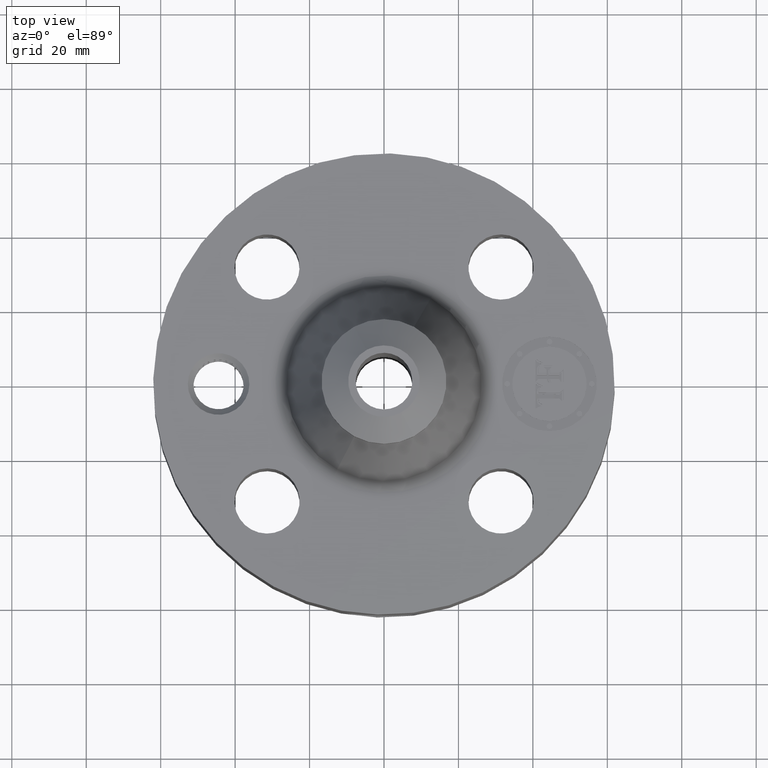
[diagram: clean part render]
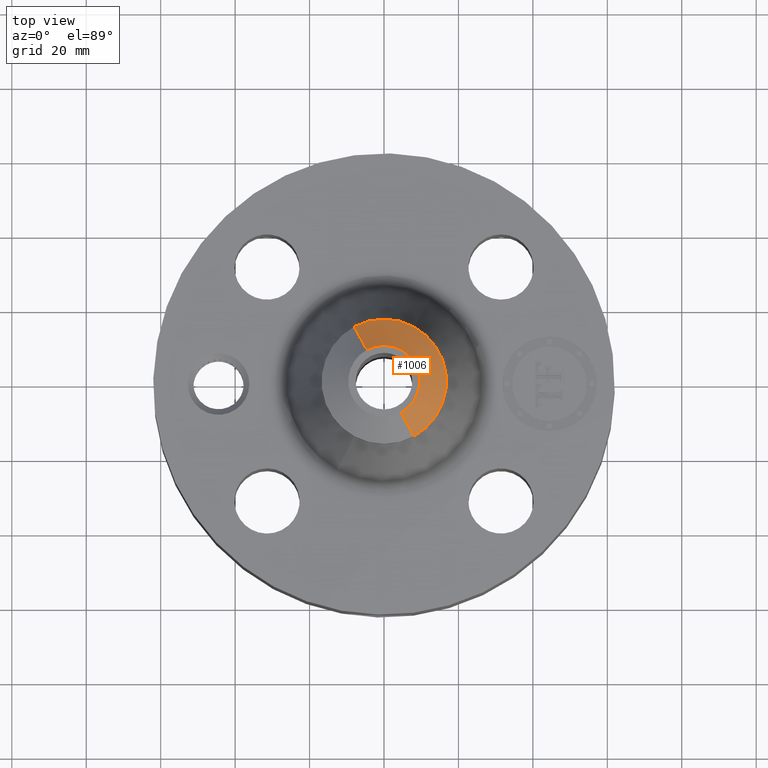
[diagram: same view with one face highlighted and labeled with its STEP entity id]
A machine part, top view. The second image highlights one B-rep face of the part: STEP entity #1006.
In plain terms, the highlighted conical surface has half-angle 52.5 deg.
Its self-contained STEP definition (entity closure, byte-faithful):
#515=AXIS2_PLACEMENT_3D('Circle Axis2P3D',#513,#514,$) ;
#951=AXIS2_PLACEMENT_3D('Cone Axis2P3D',#948,#949,#950) ;
#989=AXIS2_PLACEMENT_3D('Circle Axis2P3D',#987,#988,$) ;
#996=AXIS2_PLACEMENT_3D('Circle Axis2P3D',#994,#995,$) ;
#513=CARTESIAN_POINT('Axis2P3D Location',(0.,0.,3.50000000001)) ;
#517=CARTESIAN_POINT('Vertex',(0.181337991222,-0.331936966412,3.50000000001)) ;
#519=CARTESIAN_POINT('Vertex',(-0.181337991222,0.331936966412,3.50000000001)) ;
#948=CARTESIAN_POINT('Axis2P3D Location',(0.,0.,3.50000000001)) ;
#953=CARTESIAN_POINT('Line Origine',(0.248879423351,-0.455570728631,3.39189903437)) ;
#957=CARTESIAN_POINT('Vertex',(0.31642085548,-0.57920449085,3.28379806872)) ;
#960=CARTESIAN_POINT('Line Origine',(-0.248879423351,0.455570728631,3.39189903437)) ;
#964=CARTESIAN_POINT('Vertex',(-0.31642085548,0.57920449085,3.28379806872)) ;
#987=CARTESIAN_POINT('Axis2P3D Location',(0.,0.,3.28379806872)) ;
#991=CARTESIAN_POINT('Vertex',(0.31642085548,0.57920449085,3.28379806872)) ;
#994=CARTESIAN_POINT('Axis2P3D Location',(0.,0.,3.28379806872)) ;
#514=DIRECTION('Axis2P3D Direction',(0.,0.,-0.0393700787402)) ;
#949=DIRECTION('Axis2P3D Direction',(-0.,-0.,-0.0393700787402)) ;
#950=DIRECTION('Axis2P3D XDirection',(-0.0188750212049,0.0345504945626,0.)) ;
#954=DIRECTION('Vector Direction',(0.014974561121,-0.02741075027,-0.023966985394)) ;
#961=DIRECTION('Vector Direction',(-0.014974561121,0.02741075027,-0.023966985394)) ;
#988=DIRECTION('Axis2P3D Direction',(0.,0.,-0.0393700787402)) ;
#995=DIRECTION('Axis2P3D Direction',(0.,0.,-0.0393700787402)) ;
#955=VECTOR('Line Direction',#954,0.0393700787402) ;
#962=VECTOR('Line Direction',#961,0.0393700787402) ;
#1000=ORIENTED_EDGE('',*,*,#966,.F.) ;
#1001=ORIENTED_EDGE('',*,*,#521,.F.) ;
#1002=ORIENTED_EDGE('',*,*,#959,.T.) ;
#1003=ORIENTED_EDGE('',*,*,#993,.T.) ;
#1004=ORIENTED_EDGE('',*,*,#998,.F.) ;
#1006=ADVANCED_FACE('PartBody',(#1005),#952,.T.) ;
#516=CIRCLE('generated circle',#515,0.378240157482) ;
#990=CIRCLE('generated circle',#989,0.660000000003) ;
#997=CIRCLE('generated circle',#996,0.660000000003) ;
#952=CONICAL_SURFACE('Cone',#951,0.378240157481,0.916297857297) ;
#521=EDGE_CURVE('',#518,#520,#516,.F.) ;
#959=EDGE_CURVE('',#518,#958,#956,.T.) ;
#966=EDGE_CURVE('',#520,#965,#963,.T.) ;
#993=EDGE_CURVE('',#958,#992,#990,.F.) ;
#998=EDGE_CURVE('',#965,#992,#997,.T.) ;
#999=EDGE_LOOP('',(#1000,#1001,#1002,#1003,#1004)) ;
#1005=FACE_OUTER_BOUND('',#999,.T.) ;
#956=LINE('Line',#953,#955) ;
#963=LINE('Line',#960,#962) ;
#518=VERTEX_POINT('',#517) ;
#520=VERTEX_POINT('',#519) ;
#958=VERTEX_POINT('',#957) ;
#965=VERTEX_POINT('',#964) ;
#992=VERTEX_POINT('',#991) ;